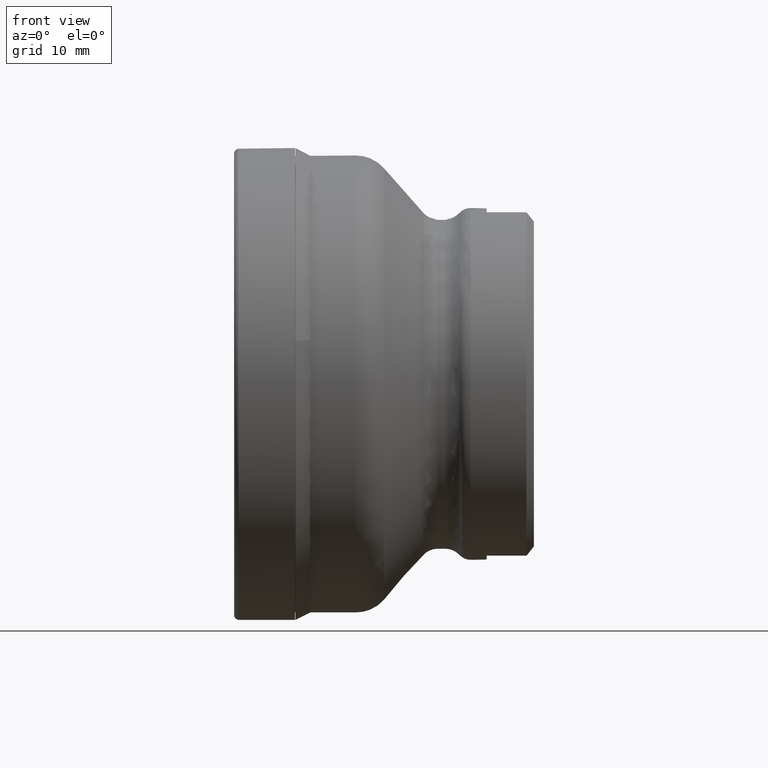
[diagram: clean part render]
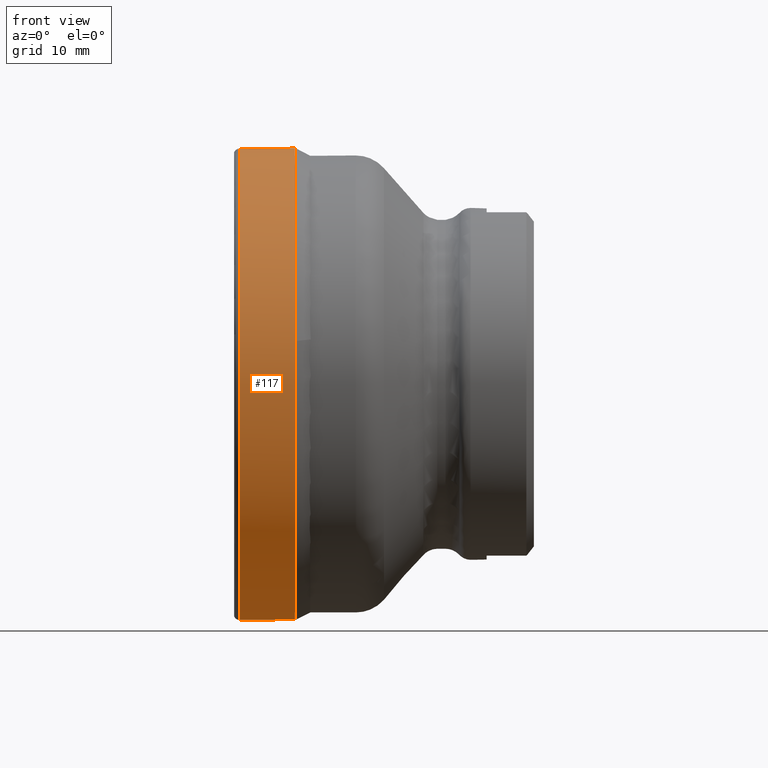
[diagram: same view with one face highlighted and labeled with its STEP entity id]
A machine part, front view. The second image highlights one B-rep face of the part: STEP entity #117.
In plain terms, the highlighted face is a SurfaceOfRevolution surface.
Its self-contained STEP definition (entity closure, byte-faithful):
#117=ADVANCED_FACE('',(#271,#272),#175,.F.);
#175=SURFACE_OF_REVOLUTION('',#215,#195);
#195=AXIS1_PLACEMENT('',#1186,#943);
#215=LINE('',#1185,#243);
#243=VECTOR('',#942,7.38830001208415);
#271=FACE_BOUND('',#355,.T.);
#272=FACE_BOUND('',#356,.T.);
#355=EDGE_LOOP('',(#455));
#356=EDGE_LOOP('',(#456));
#455=ORIENTED_EDGE('',*,*,#695,.T.);
#456=ORIENTED_EDGE('',*,*,#696,.F.);
#625=VERTEX_POINT('',#1182);
#626=VERTEX_POINT('',#1184);
#695=EDGE_CURVE('',#625,#625,#781,.T.);
#696=EDGE_CURVE('',#626,#626,#782,.T.);
#781=CIRCLE('',#839,31.4996389427764);
#782=CIRCLE('',#840,31.4896915876379);
#839=AXIS2_PLACEMENT_3D('',#1181,#938,#939);
#840=AXIS2_PLACEMENT_3D('',#1183,#940,#941);
#938=DIRECTION('',(1.,0.,0.));
#939=DIRECTION('',(0.,0.,-1.));
#940=DIRECTION('',(1.,0.,0.));
#941=DIRECTION('',(0.,0.,-1.));
#942=DIRECTION('',(-0.998647801265785,0.00844494216396357,0.0512957306104632));
#943=DIRECTION('',(1.,0.,0.));
#1181=CARTESIAN_POINT('',(0.748885073484817,0.,0.));
#1182=CARTESIAN_POINT('',(0.748885073484817,0.,-31.4996389427764));
#1183=CARTESIAN_POINT('',(8.12719463564462,0.,0.));
#1184=CARTESIAN_POINT('',(8.12719463564462,0.,-31.4896915876379));
#1185=CARTESIAN_POINT('',(8.12719463564462,-30.9640311468818,5.72969906884195));
#1186=CARTESIAN_POINT('',(0.,0.,0.));